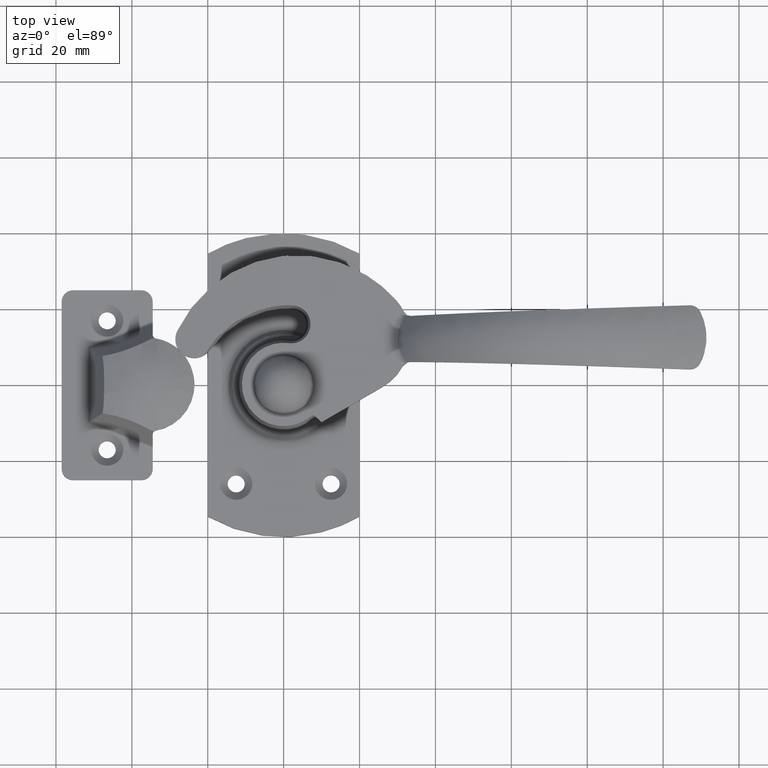
[diagram: clean part render]
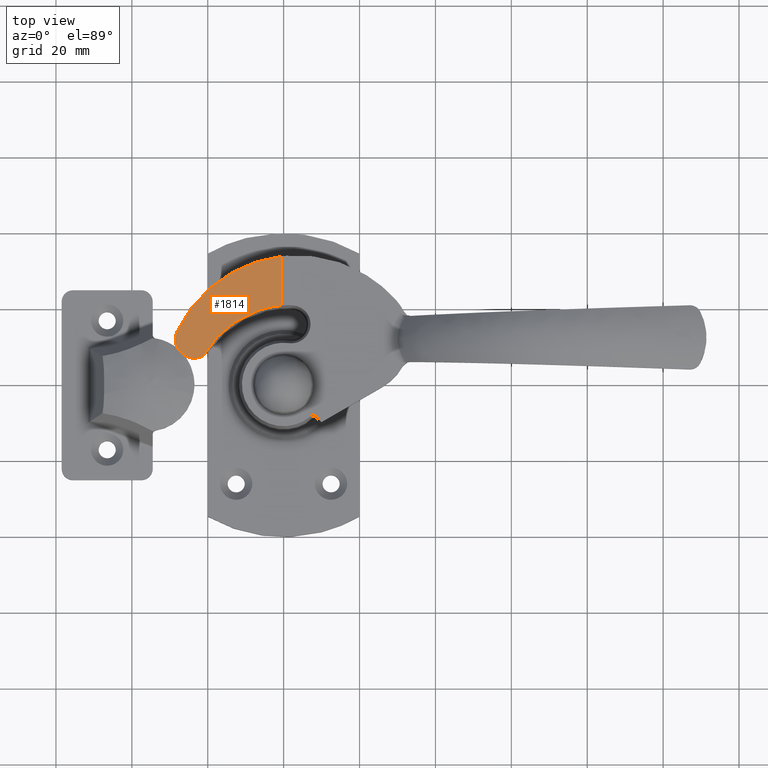
[diagram: same view with one face highlighted and labeled with its STEP entity id]
A machine part, top view. The second image highlights one B-rep face of the part: STEP entity #1814.
In plain terms, the highlighted face is a freeform B-spline surface patch.
Its self-contained STEP definition (entity closure, byte-faithful):
#1727=CARTESIAN_POINT('',(-0.689205927027245,33.750111904821900,14.503607562653601));
#1728=VERTEX_POINT('',#1727);
#1736=CARTESIAN_POINT('',(-0.689205927027230,20.811744156306400,14.503607562653441));
#1737=VERTEX_POINT('',#1736);
#1738=CARTESIAN_POINT('',(-0.689205927027245,33.750111904821900,14.503607562653601));
#1739=CARTESIAN_POINT('',(-0.689205927027230,20.811744156306400,14.503607562653441));
#1740=QUASI_UNIFORM_CURVE('',1,(#1738,#1739),.UNSPECIFIED.,.F.,.U.);
#1741=EDGE_CURVE('',#1728,#1737,#1740,.T.);
#1761=CARTESIAN_POINT('',(-29.941588020955610,35.086258196490149,10.412365311754421));
#1762=CARTESIAN_POINT('',(0.702438642705374,35.086258196490142,14.698243166811800));
#1763=CARTESIAN_POINT('',(-29.941588020955621,5.664262017188075,10.412365311754421));
#1764=CARTESIAN_POINT('',(0.702438642705367,5.664262017188069,14.698243166811800));
#1765=B_SPLINE_SURFACE_WITH_KNOTS('',1,1,((#1761,#1763),(#1762,#1764)),.UNSPECIFIED.,.F.,.F.,.U.,(2,2),(2,2),(0.0,30.942286908883069),(0.0,29.421996179302070),.UNSPECIFIED.);
#1766=CARTESIAN_POINT('',(-28.057494597141400,14.166666696595421,10.675874881518901));
#1767=VERTEX_POINT('',#1766);
#1768=CARTESIAN_POINT('',(-28.057494597141400,14.166666696595421,10.675874881518901));
#1769=CARTESIAN_POINT('',(-19.741939478372775,31.461109103646091,11.838889583444473));
#1770=CARTESIAN_POINT('',(-0.689205927027245,33.750111904821900,14.503607562653601));
#1778=(BOUNDED_CURVE()B_SPLINE_CURVE(2,(#1768,#1769,#1770),.UNSPECIFIED.,.F.,.U.)CURVE()GEOMETRIC_REPRESENTATION_ITEM()QUASI_UNIFORM_CURVE()RATIONAL_B_SPLINE_CURVE((1.0,0.876852612187825,1.0))REPRESENTATION_ITEM(''));
#1779=EDGE_CURVE('',#1767,#1728,#1778,.T.);
#1780=ORIENTED_EDGE('',*,*,#1779,.F.);
#1781=CARTESIAN_POINT('',(-21.074566278696700,7.656538099288760,11.652508212769700));
#1782=VERTEX_POINT('',#1781);
#1783=CARTESIAN_POINT('',(-21.074566278696700,7.656538099288758,11.652508212769680));
#1784=CARTESIAN_POINT('',(-24.270184975309260,5.834309689476444,11.205568534921778));
#1785=CARTESIAN_POINT('',(-26.960881496644681,8.342824680809056,10.829247343126619));
#1786=CARTESIAN_POINT('',(-29.651578017980089,10.851339672141663,10.452926151331472));
#1787=CARTESIAN_POINT('',(-28.057494597141400,14.166666696595421,10.675874881518901));
#1795=(BOUNDED_CURVE()B_SPLINE_CURVE(2,(#1783,#1784,#1785,#1786,#1787),.UNSPECIFIED.,.F.,.U.)B_SPLINE_CURVE_WITH_KNOTS((3,2,3),(0.0,0.500000000000000,1.0),.UNSPECIFIED.)CURVE()GEOMETRIC_REPRESENTATION_ITEM()RATIONAL_B_SPLINE_CURVE((1.0,0.805483108966163,1.0,0.805483108966163,1.0))REPRESENTATION_ITEM(''));
#1796=EDGE_CURVE('',#1782,#1767,#1795,.T.);
#1797=ORIENTED_EDGE('',*,*,#1796,.F.);
#1798=CARTESIAN_POINT('',(-21.074566278696700,7.656538099288801,11.652508212769661));
#1799=CARTESIAN_POINT('',(-14.347067810750607,19.601657155166066,12.593417089405467));
#1800=CARTESIAN_POINT('',(-0.689205927027230,20.811744156306411,14.503607562653441));
#1808=(BOUNDED_CURVE()B_SPLINE_CURVE(2,(#1798,#1799,#1800),.UNSPECIFIED.,.F.,.U.)CURVE()GEOMETRIC_REPRESENTATION_ITEM()QUASI_UNIFORM_CURVE()RATIONAL_B_SPLINE_CURVE((1.0,0.884774388832090,1.0))REPRESENTATION_ITEM(''));
#1809=EDGE_CURVE('',#1782,#1737,#1808,.T.);
#1810=ORIENTED_EDGE('',*,*,#1809,.T.);
#1811=ORIENTED_EDGE('',*,*,#1741,.F.);
#1812=EDGE_LOOP('',(#1780,#1797,#1810,#1811));
#1813=FACE_OUTER_BOUND('',#1812,.T.);
#1814=ADVANCED_FACE('',(#1813),#1765,.F.);